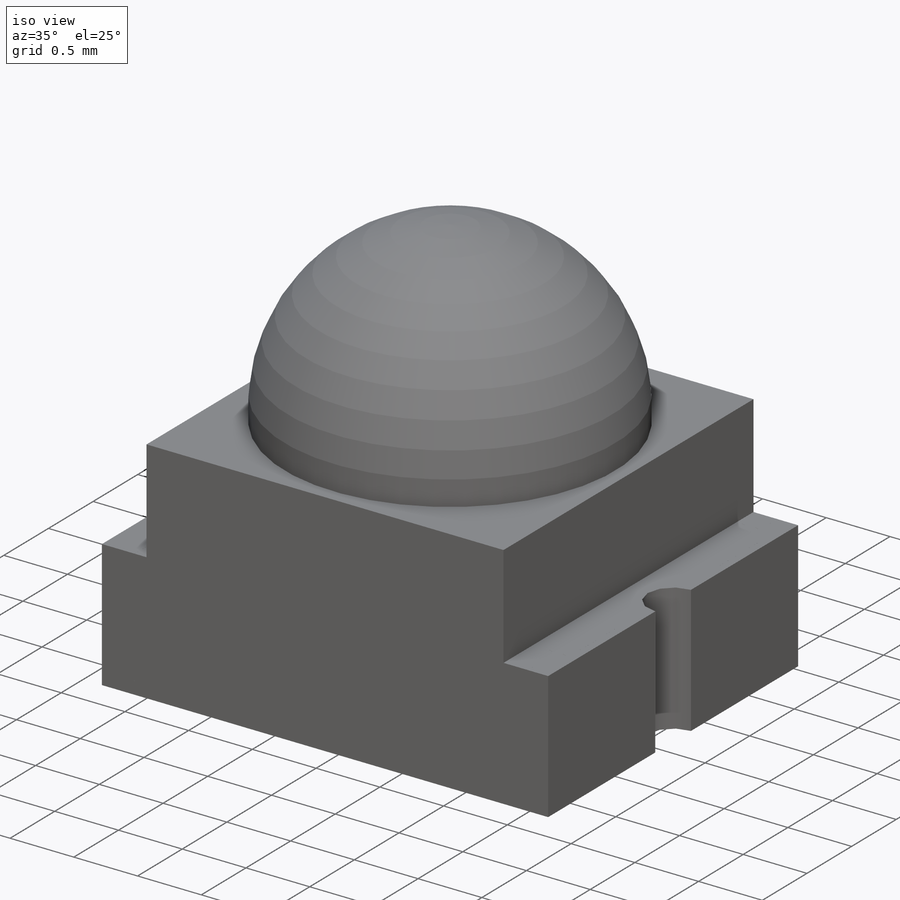
[diagram: iso view]
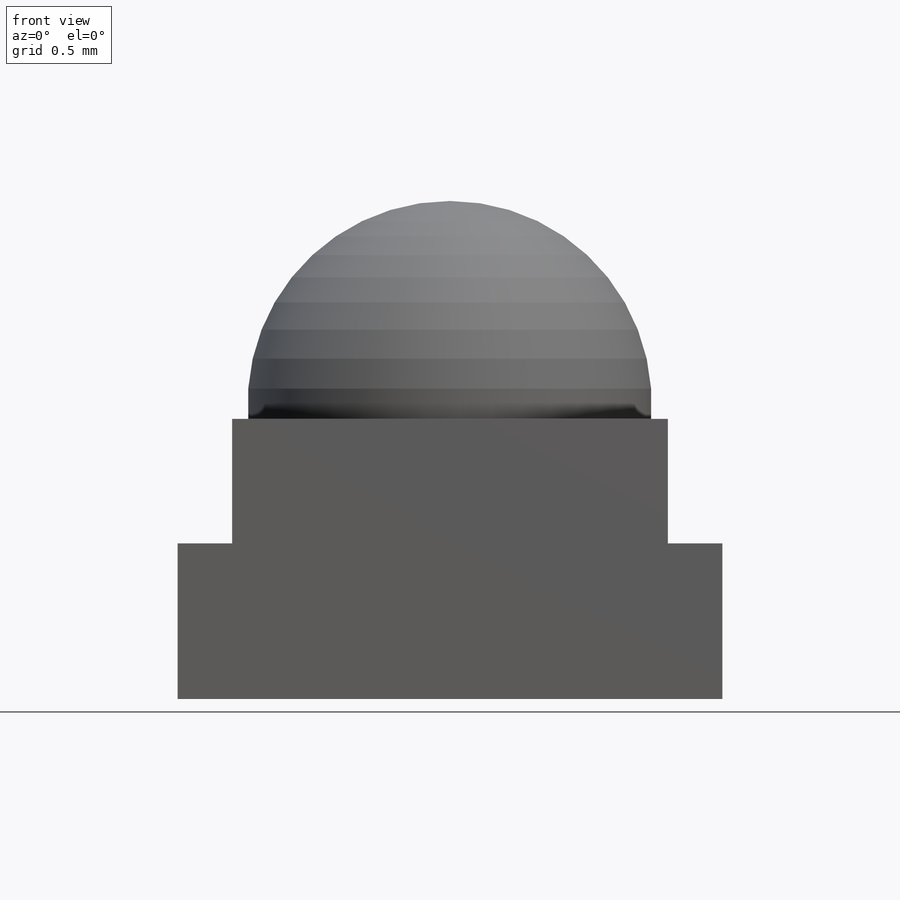
[diagram: front view]
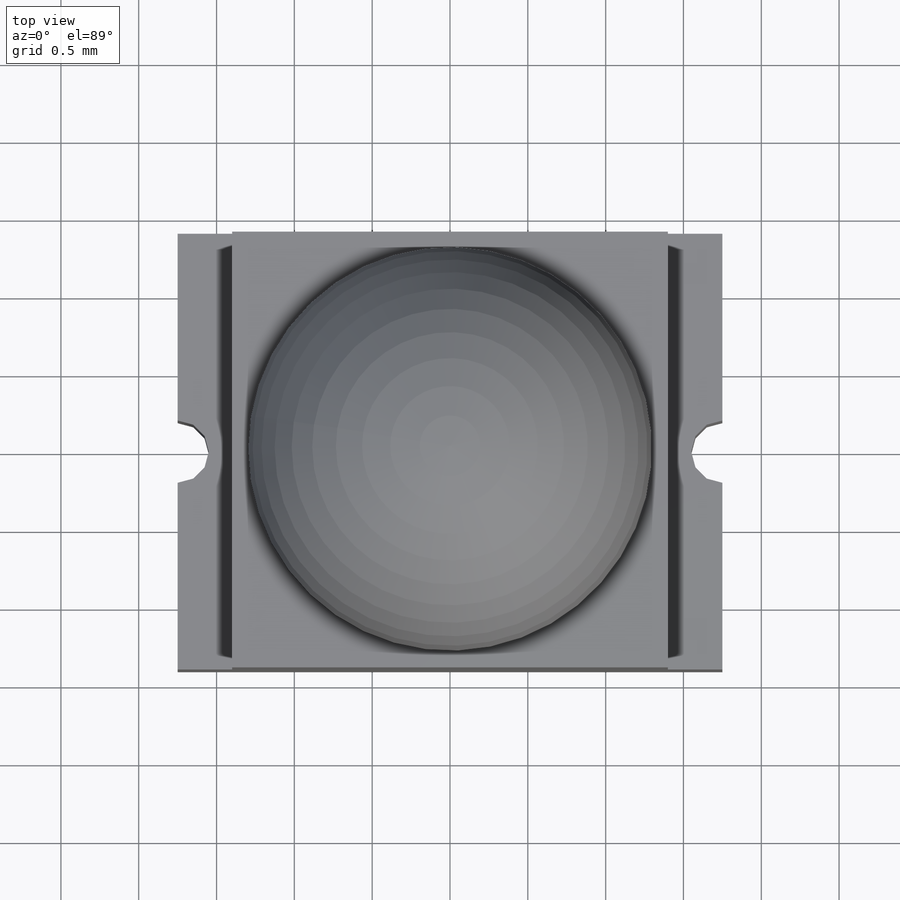
[diagram: top view]
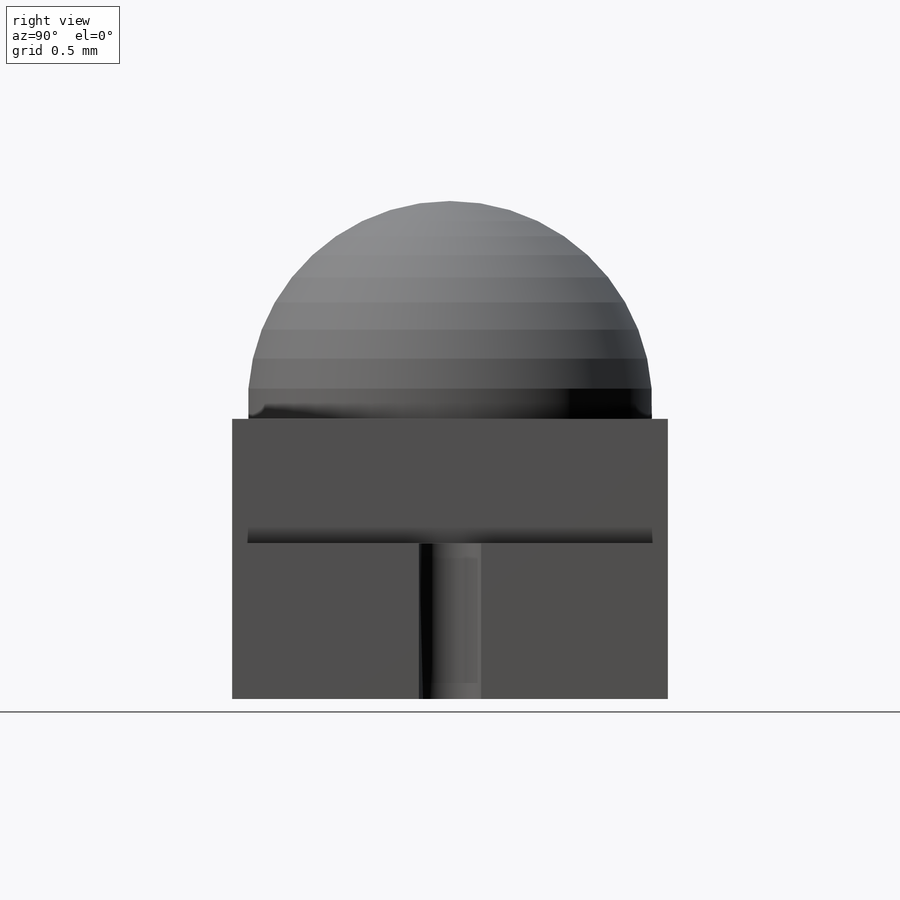
[diagram: right view]
SOLIDWORKS PART (.sldprt)
format: sldprt  version: not decoded by parser v0  size: 415,232 bytes
history: native  units: mm
features: sketch x9, extrude x6, cut_extrude x2, material x1, revolve x1 (+13 scaffold rows collapsed)
feature tree (32):
  scaffold x13  (default folders/planes/origin — collapsed)
  material  "Material <not specified>"
  sketch  "Sketch1"  dims[c1.D6=0.35mm c1.D7=1.8mm c2.D6=1.3mm c2.D1=1.0mm c2.D2=3.5mm c2.D3=2.1mm c2.D4=2.8mm c2.D5=1.8mm c3.D6=0.95mm c3.D8=3.2mm]
  extrude  "Extrude1"  Depth=2.8mm
  extrude  "Extrude2"  [1 undecoded]
  sketch  "Sketch1<3>"  dims[D1=2.8mm]
  sketch  "Sketch3"  dims[c1.D1=0.5mm c1.D4=0.2mm c1.D2=0.5mm c1.D3=1.0mm c2.D4=1.1mm c2.D2=1.1mm c2.D1=0.6mm c3.D2=2.15mm c3.D3=1.4mm c3.D5=2.0mm c3.D1=0.8mm]
  cut_extrude  "Cut-Extrude2"  [1 undecoded]
  extrude  "Extrude4"  [1 undecoded]
  sketch  "Sketch3<3>"  dims[D1=0.03mm D2=0.0001mm]
  sketch  "Sketch4"  dims[c1.D1=0.15mm c1.D2=0.15mm c1.D3=0.4mm c1.D4=0.4mm c2.D1=0.1mm c2.D2=0.2mm]
  extrude  "Extrude6"  Depth=0.03mm
  revolve  "Revolve1"  [1 undecoded]
  sketch  "Sketch1<5>"  dims[D1=360.0deg]
  extrude  "Extrude7"  [1 undecoded]
  sketch  "Sketch3<4>"  dims[D1=0.03mm D2=0.0001mm]
  extrude  "Extrude8"  [1 undecoded]
  sketch  "Sketch4<5>"  dims[D1=0.01mm D2=0.0001mm]
  sketch  "Sketch5"  dims[D1=0.1mm D2=0.5mm]
  cut_extrude  "Cut-Extrude3"  Depth=0.001mm
decode coverage: 12 of 18 modeling features carry decoded parameters
note: 6 parameter values undecoded
summary: no parameter record found for 6 features
note: suppression state not decoded; provenance and decode notes live in map.json
